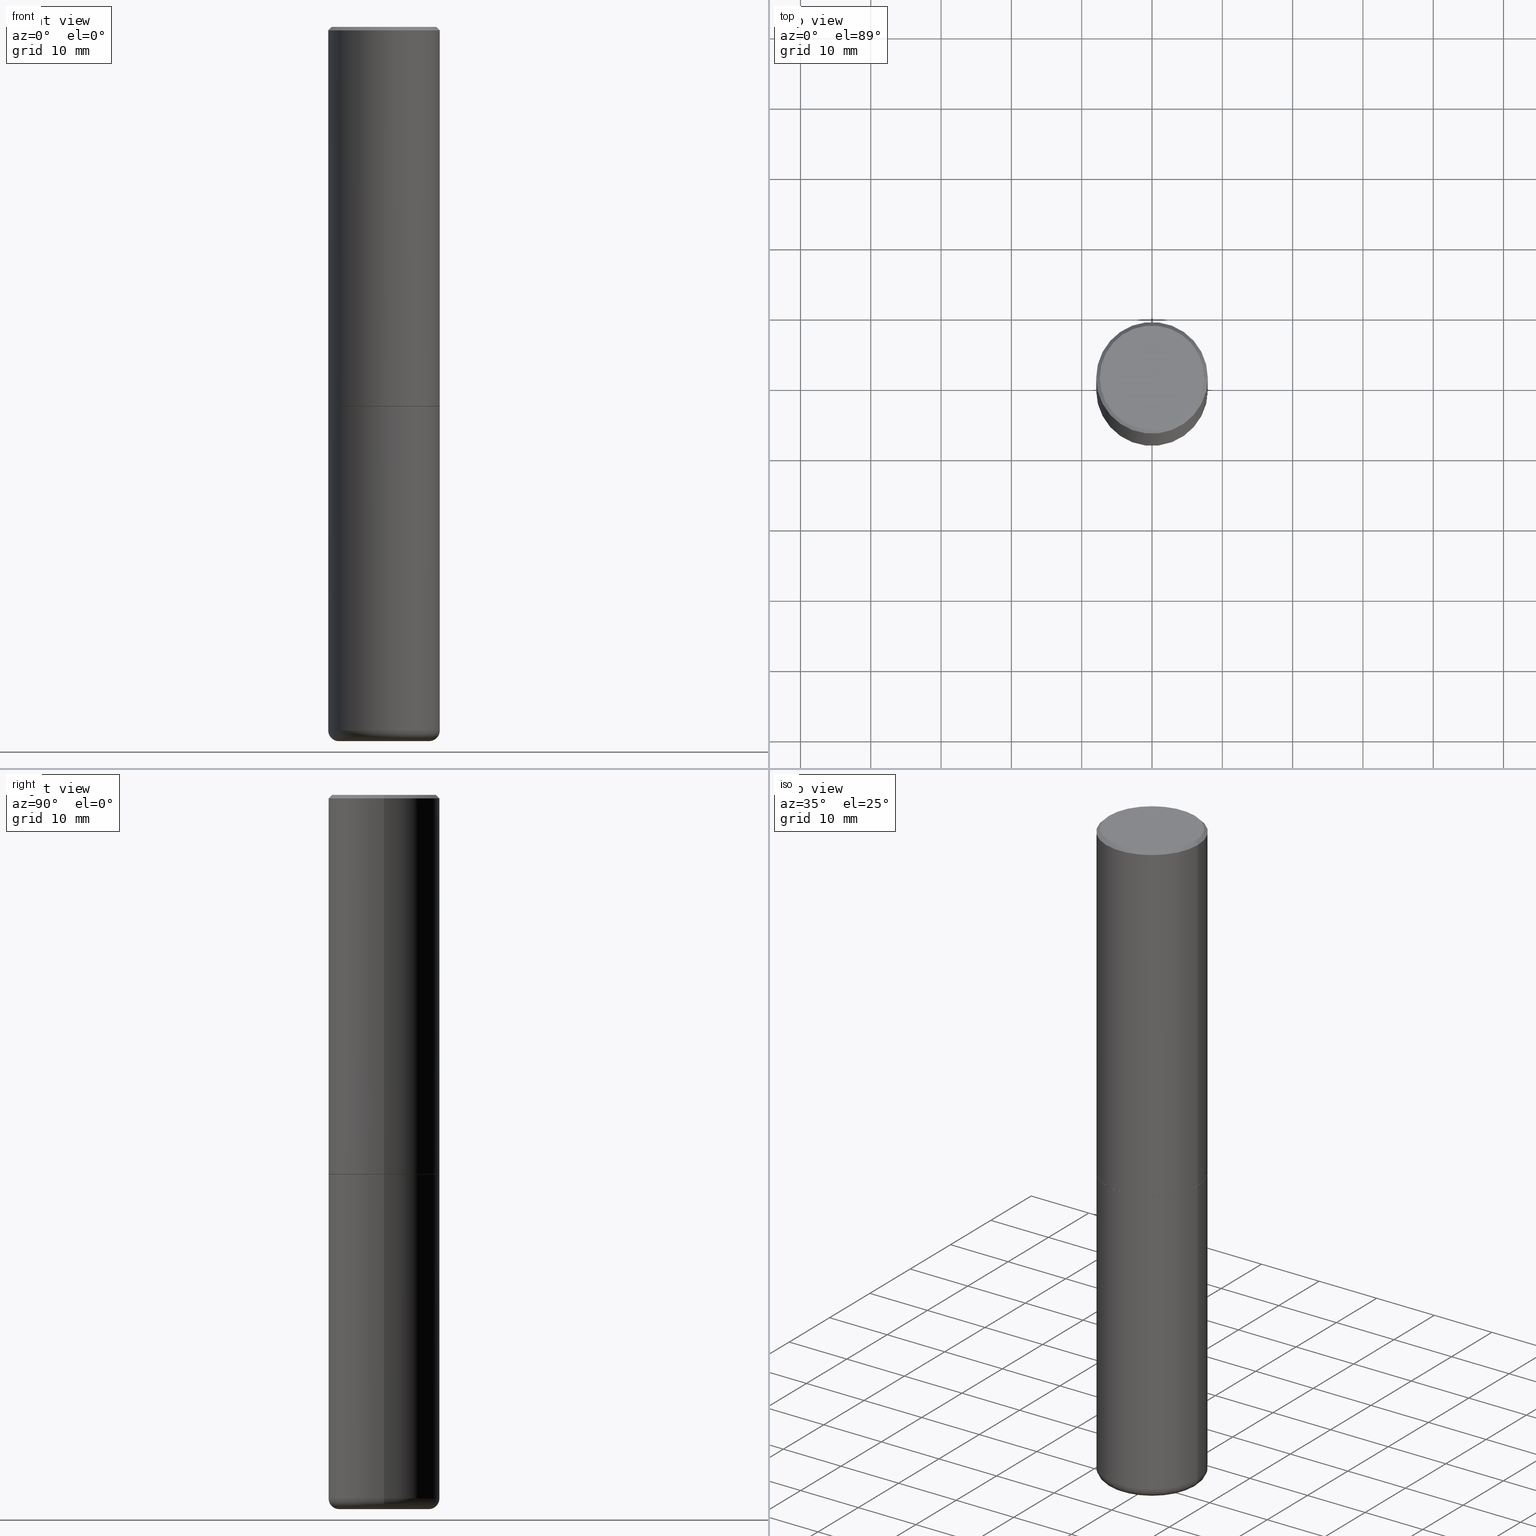
[diagram: canonical four-view strip — front | top / right | iso, engineering-drawing reading convention]
A machine part, canonical four-view strip (front | top / right | iso — engineering-drawing reading convention). The complete STEP part file that produces these views, byte-faithful:
ISO-10303-21;
HEADER;
FILE_DESCRIPTION (( 'STEP AP203' ),
    '1' );
FILE_NAME ('77397.STEP',
    '2024-05-02T19:36:14',
    ( '' ),
    ( '' ),
    'SwSTEP 2.0',
    'SolidWorks 2023',
    '' );
FILE_SCHEMA (( 'CONFIG_CONTROL_DESIGN' ));
ENDSEC;

DATA;
#1 = ORIENTED_EDGE ( 'NONE', *, *, #175, .T. ) ;
#2 = CC_DESIGN_PERSON_AND_ORGANIZATION_ASSIGNMENT ( #333, #269, ( #283 ) ) ;
#3 = ORIENTED_EDGE ( 'NONE', *, *, #313, .T. ) ;
#4 = DIRECTION ( 'NONE',  ( 2.438088387897960049E-29, -3.491481338843145188E-15, -1.000000000000000000 ) ) ;
#5 = CIRCLE ( 'NONE', #353, 0.06000000000000021289 ) ;
#6 = EDGE_LOOP ( 'NONE', ( #138, #102 ) ) ;
#7 = DATE_AND_TIME ( #200, #49 ) ;
#8 = ADVANCED_FACE ( 'NONE', ( #320 ), #314, .T. ) ;
#9 = DIRECTION ( 'NONE',  ( -2.445468806185136597E-29, 3.491481338843145583E-15, 1.000000000000000000 ) ) ;
#10 = PERSON_AND_ORGANIZATION ( #145, #12 ) ;
#11 = AXIS2_PLACEMENT_3D ( 'NONE', #30, #174, #19 ) ;
#12 = ORGANIZATION ( 'UNSPECIFIED', 'UNSPECIFIED', '' ) ;
#13 = FACE_OUTER_BOUND ( 'NONE', #385, .T. ) ;
#14 = APPROVAL_DATE_TIME ( #308, #286 ) ;
#15 = LENGTH_MEASURE_WITH_UNIT ( LENGTH_MEASURE( 0.02539999999999999897 ), #273 );
#16 = CARTESIAN_POINT ( 'NONE',  ( 0.3125000000000000000, -2.213735251080466911E-15, -0.02000000000000006981 ) ) ;
#17 = ADVANCED_FACE ( 'NONE', ( #414 ), #410, .T. ) ;
#18 = DIRECTION ( 'NONE',  ( 1.000000000000000000, -6.982962677686269077E-15, 0.000000000000000000 ) ) ;
#19 = DIRECTION ( 'NONE',  ( 1.000000000000000000, -6.982962677686269077E-15, 0.000000000000000000 ) ) ;
#20 = AXIS2_PLACEMENT_3D ( 'NONE', #275, #171, #18 ) ;
#21 = CARTESIAN_POINT ( 'NONE',  ( 5.196621213143415268E-29, -7.419397845041683624E-15, -2.125000000000000000 ) ) ;
#22 = CARTESIAN_POINT ( 'NONE',  ( 9.635147096369438236E-29, -1.375643647504199401E-14, -3.939999999999999947 ) ) ;
#23 = CC_DESIGN_PERSON_AND_ORGANIZATION_ASSIGNMENT ( #166, #335, ( #150 ) ) ;
#24 = VERTEX_POINT ( 'NONE', #129 ) ;
#25 = VERTEX_POINT ( 'NONE', #97 ) ;
#26 = DIRECTION ( 'NONE',  ( 1.000000000000000000, -6.982962677686265922E-15, 0.000000000000000000 ) ) ;
#27 = AXIS2_PLACEMENT_3D ( 'NONE', #375, #202, #338 ) ;
#28 = DIRECTION ( 'NONE',  ( 2.438088387897960049E-29, -3.491481338843145188E-15, -1.000000000000000000 ) ) ;
#29 = EDGE_CURVE ( 'NONE', #107, #411, #250, .T. ) ;
#30 = CARTESIAN_POINT ( 'NONE',  ( 9.635147096369438236E-29, -1.375643647504199401E-14, -3.939999999999999947 ) ) ;
#31 = ORIENTED_EDGE ( 'NONE', *, *, #245, .F. ) ;
#32 = CIRCLE ( 'NONE', #267, 0.2525000000000000022 ) ;
#33 = ADVANCED_FACE ( 'NONE', ( #218 ), #323, .T. ) ;
#34 = PLANE ( 'NONE',  #187 ) ;
#35 = MECHANICAL_CONTEXT ( 'NONE', #153, 'mechanical' ) ;
#36 = ORIENTED_EDGE ( 'NONE', *, *, #68, .T. ) ;
#37 = CALENDAR_DATE ( 2024, 2, 5 ) ;
#38 = EDGE_CURVE ( 'NONE', #25, #394, #220, .T. ) ;
#39 = ORIENTED_EDGE ( 'NONE', *, *, #38, .T. ) ;
#40 = AXIS2_PLACEMENT_3D ( 'NONE', #201, #141, #348 ) ;
#41 = DATE_AND_TIME ( #370, #65 ) ;
#42 = ORIENTED_EDGE ( 'NONE', *, *, #257, .T. ) ;
#43 = PERSON_AND_ORGANIZATION ( #145, #12 ) ;
#44 = CYLINDRICAL_SURFACE ( 'NONE', #260, 0.3125000000000001665 ) ;
#45 = CARTESIAN_POINT ( 'NONE',  ( 4.906101647375534649E-45, -7.004612900788104277E-31, -2.006200870347193887E-16 ) ) ;
#46 = DIRECTION ( 'NONE',  ( -0.7071067811865466846, 2.468850131082247989E-15, -0.7071067811865483499 ) ) ;
#47 = LINE ( 'NONE', #124, #155 ) ;
#48 = AXIS2_PLACEMENT_3D ( 'NONE', #54, #304, #117 ) ;
#49 = LOCAL_TIME ( 15, 36, 14.00000000000000000, #298 ) ;
#50 = EDGE_CURVE ( 'NONE', #227, #382, #120, .T. ) ;
#51 = DIRECTION ( 'NONE',  ( 1.000000000000000000, -6.982962677686275388E-15, 0.000000000000000000 ) ) ;
#52 = ORIENTED_EDGE ( 'NONE', *, *, #116, .F. ) ;
#53 = DIRECTION ( 'NONE',  ( -0.7071067811866199593, 7.493145998870616062E-15, 0.7071067811864750752 ) ) ;
#54 = CARTESIAN_POINT ( 'NONE',  ( 5.196621213143415268E-29, -7.419397845041683624E-15, -2.125000000000000000 ) ) ;
#55 = VECTOR ( 'NONE', #325, 39.37007874015748143 ) ;
#56 = CARTESIAN_POINT ( 'NONE',  ( 0.2525000000000000022, -1.572912343148836720E-14, -4.000000000000000888 ) ) ;
#57 = ORIENTED_EDGE ( 'NONE', *, *, #355, .T. ) ;
#58 = LINE ( 'NONE', #79, #401 ) ;
#59 = CARTESIAN_POINT ( 'NONE',  ( -0.3114999999999999991, -5.200758768800747571E-15, -2.125000000000000000 ) ) ;
#60 = ORIENTED_EDGE ( 'NONE', *, *, #83, .T. ) ;
#61 = DIRECTION ( 'NONE',  ( 1.000000000000000000, -6.982962677686265922E-15, 4.876176775795935793E-29 ) ) ;
#62 = EDGE_LOOP ( 'NONE', ( #365, #82, #215, #249 ) ) ;
#63 = CLOSED_SHELL ( 'NONE', ( #213, #231, #272, #311, #8, #191 ) ) ;
#64 = ADVANCED_FACE ( 'NONE', ( #13 ), #221, .T. ) ;
#65 = LOCAL_TIME ( 15, 36, 14.00000000000000000, #193 ) ;
#66 = ORIENTED_EDGE ( 'NONE', *, *, #50, .T. ) ;
#67 = APPROVAL_ROLE ( '' ) ;
#68 = EDGE_CURVE ( 'NONE', #25, #297, #163, .T. ) ;
#69 = CIRCLE ( 'NONE', #376, 0.06000000000000021289 ) ;
#70 = DIRECTION ( 'NONE',  ( -1.000000000000000000, 6.982962677686266711E-15, 0.000000000000000000 ) ) ;
#71 = EDGE_LOOP ( 'NONE', ( #324, #363, #42, #88 ) ) ;
#72 = PERSON_AND_ORGANIZATION_ROLE ( 'design_owner' ) ;
#73 = PERSON_AND_ORGANIZATION ( #145, #12 ) ;
#74 =( CONVERSION_BASED_UNIT ( 'INCH', #15 ) LENGTH_UNIT ( ) NAMED_UNIT ( #407 ) );
#75 = DIRECTION ( 'NONE',  ( -2.445468806185136597E-29, 3.491481338843145583E-15, 1.000000000000000000 ) ) ;
#76 = DIRECTION ( 'NONE',  ( 1.000000000000000000, -6.982962677686266711E-15, 4.873475059489872853E-29 ) ) ;
#77 = CYLINDRICAL_SURFACE ( 'NONE', #80, 0.3125000000000000000 ) ;
#78 = DIRECTION ( 'NONE',  ( -2.445468806185136877E-29, 3.491481338843145188E-15, 1.000000000000000000 ) ) ;
#79 = CARTESIAN_POINT ( 'NONE',  ( -0.3114999999999999991, -5.206057223148971551E-15, -2.125000000000000000 ) ) ;
#80 = AXIS2_PLACEMENT_3D ( 'NONE', #374, #342, #244 ) ;
#81 = CARTESIAN_POINT ( 'NONE',  ( -0.2525000000000000022, -1.196231606724773985E-14, -3.939999999999999947 ) ) ;
#82 = ORIENTED_EDGE ( 'NONE', *, *, #377, .T. ) ;
#83 = EDGE_CURVE ( 'NONE', #107, #135, #388, .T. ) ;
#84 = CARTESIAN_POINT ( 'NONE',  ( 4.906101647375534649E-45, -7.004612900788104277E-31, -2.006200870347193887E-16 ) ) ;
#85 = CARTESIAN_POINT ( 'NONE',  ( -0.2925000000000002043, 2.077431396611664583E-15, -2.006200870347337854E-16 ) ) ;
#86 = ORIENTED_EDGE ( 'NONE', *, *, #142, .F. ) ;
#87 = DIRECTION ( 'NONE',  ( -2.445468806185136597E-29, 3.491481338843145583E-15, 1.000000000000000000 ) ) ;
#88 = ORIENTED_EDGE ( 'NONE', *, *, #387, .T. ) ;
#89 = ORIENTED_EDGE ( 'NONE', *, *, #175, .F. ) ;
#90 = DIRECTION ( 'NONE',  ( 1.000000000000000000, -6.982962677686264344E-15, 4.883557194083112340E-29 ) ) ;
#91 = DIRECTION ( 'NONE',  ( 1.000000000000000000, -6.982962677686266711E-15, 4.876176775795936353E-29 ) ) ;
#92 = ORIENTED_EDGE ( 'NONE', *, *, #276, .T. ) ;
#93 = ORIENTED_EDGE ( 'NONE', *, *, #109, .F. ) ;
#94 = DATE_AND_TIME ( #358, #173 ) ;
#95 = CARTESIAN_POINT ( 'NONE',  ( 0.3125000000000000000, -2.213735251080466911E-15, -0.02000000000000006981 ) ) ;
#96 = EDGE_LOOP ( 'NONE', ( #66, #157, #259, #331 ) ) ;
#97 = CARTESIAN_POINT ( 'NONE',  ( -0.3125000000000002776, -1.522421945989534932E-15, -2.123999999999999666 ) ) ;
#98 = AXIS2_PLACEMENT_3D ( 'NONE', #21, #146, #240 ) ;
#99 = ORIENTED_EDGE ( 'NONE', *, *, #116, .T. ) ;
#100 = APPROVAL ( #236, 'UNSPECIFIED' ) ;
#101 = CARTESIAN_POINT ( 'NONE',  ( 9.781875224740547508E-29, -1.396592535537258391E-14, -4.000000000000000888 ) ) ;
#102 = ORIENTED_EDGE ( 'NONE', *, *, #396, .F. ) ;
#103 = APPROVAL_PERSON_ORGANIZATION ( #43, #286, #366 ) ;
#104 = EDGE_LOOP ( 'NONE', ( #99, #3, #93, #86 ) ) ;
#105 = FACE_OUTER_BOUND ( 'NONE', #71, .T. ) ;
#106 = DIRECTION ( 'NONE',  ( 1.000000000000000000, -6.982962677686269077E-15, 0.000000000000000000 ) ) ;
#107 = VERTEX_POINT ( 'NONE', #140 ) ;
#108 = PERSON_AND_ORGANIZATION ( #145, #12 ) ;
#109 = EDGE_CURVE ( 'NONE', #297, #25, #254, .T. ) ;
#110 = APPROVAL_STATUS ( 'not_yet_approved' ) ;
#111 = CONICAL_SURFACE ( 'NONE', #367, 0.3125000000000000000, 0.7853981633974471688 ) ;
#112 = CC_DESIGN_APPROVAL ( #286, ( #283 ) ) ;
#113 = DIRECTION ( 'NONE',  ( 1.000000000000000000, -6.982962677686265922E-15, 0.000000000000000000 ) ) ;
#114 = PERSON_AND_ORGANIZATION_ROLE ( 'classification_officer' ) ;
#115 = CARTESIAN_POINT ( 'NONE',  ( 0.3114999999999999991, -9.594590719140955956E-15, -2.125000000000000000 ) ) ;
#116 = EDGE_CURVE ( 'NONE', #405, #263, #131, .T. ) ;
#117 = DIRECTION ( 'NONE',  ( 1.000000000000000000, -6.982962677686265922E-15, 0.000000000000000000 ) ) ;
#118 = CARTESIAN_POINT ( 'NONE',  ( 5.196621213143415268E-29, -7.419397845041683624E-15, -2.125000000000000000 ) ) ;
#119 = CARTESIAN_POINT ( 'NONE',  ( 3.737869654564021101E-29, -2.262128533529896139E-14, -4.000000000000000000 ) ) ;
#120 = CIRCLE ( 'NONE', #11, 0.3125000000000000000 ) ;
#121 = CC_DESIGN_PERSON_AND_ORGANIZATION_ASSIGNMENT ( #397, #167, ( #283 ) ) ;
#122 = CARTESIAN_POINT ( 'NONE',  ( 0.2525000000000000022, -1.551963455115777730E-14, -3.939999999999999947 ) ) ;
#123 = CALENDAR_DATE ( 2024, 2, 5 ) ;
#124 = CARTESIAN_POINT ( 'NONE',  ( 0.3125000000000001665, -2.182175836776959530E-15, 1.523805242436230636E-29 ) ) ;
#125 = CARTESIAN_POINT ( 'NONE',  ( 0.000000000000000000, 0.000000000000000000, 0.000000000000000000 ) ) ;
#126 = ORIENTED_EDGE ( 'NONE', *, *, #257, .F. ) ;
#127 = AXIS2_PLACEMENT_3D ( 'NONE', #274, #400, #113 ) ;
#128 = EDGE_CURVE ( 'NONE', #284, #227, #69, .T. ) ;
#129 = CARTESIAN_POINT ( 'NONE',  ( 0.3125000000000000000, -9.601573681818641971E-15, -2.125000000000000000 ) ) ;
#130 = SHAPE_DEFINITION_REPRESENTATION ( #315, #176 ) ;
#131 = CIRCLE ( 'NONE', #127, 0.3114999999999999991 ) ;
#132 = CARTESIAN_POINT ( 'NONE',  ( 9.635147096369438236E-29, -1.375643647504199401E-14, -3.939999999999999947 ) ) ;
#133 = DIRECTION ( 'NONE',  ( -1.000000000000000000, 6.982962677686265922E-15, -4.876176775795935793E-29 ) ) ;
#134 = DIRECTION ( 'NONE',  ( -2.445468806185136597E-29, 3.491481338843145583E-15, 1.000000000000000000 ) ) ;
#135 = VERTEX_POINT ( 'NONE', #85 ) ;
#136 = AXIS2_PLACEMENT_3D ( 'NONE', #132, #134, #106 ) ;
#137 = ORIENTED_EDGE ( 'NONE', *, *, #128, .T. ) ;
#138 = ORIENTED_EDGE ( 'NONE', *, *, #161, .F. ) ;
#139 = CARTESIAN_POINT ( 'NONE',  ( -0.3125000000000000000, 2.112346210000095443E-15, -0.02000000000000006981 ) ) ;
#140 = CARTESIAN_POINT ( 'NONE',  ( 0.2925000000000002043, -2.110215457714321114E-15, -2.006200870347048687E-16 ) ) ;
#141 = DIRECTION ( 'NONE',  ( -2.445468806185136597E-29, 3.491481338843145583E-15, 1.000000000000000000 ) ) ;
#142 = EDGE_CURVE ( 'NONE', #405, #297, #237, .T. ) ;
#143 = DIRECTION ( 'NONE',  ( 2.438088387897960049E-29, -3.491481338843145188E-15, -1.000000000000000000 ) ) ;
#144 = PLANE ( 'NONE',  #241 ) ;
#145 = PERSON ( 'UNSPECIFIED', 'UNSPECIFIED', 'UNSPECIFIED', ('UNSPECIFIED'), ('UNSPECIFIED'), ('UNSPECIFIED') ) ;
#146 = DIRECTION ( 'NONE',  ( -2.445468806185136597E-29, 3.491481338843145583E-15, 1.000000000000000000 ) ) ;
#147 = CLOSED_SHELL ( 'NONE', ( #17, #253, #369, #198, #33, #64, #223, #384 ) ) ;
#148 = CONICAL_SURFACE ( 'NONE', #290, 0.3125000000000000000, 0.7853981633974471688 ) ;
#149 = DIRECTION ( 'NONE',  ( -2.445468806185136597E-29, 3.491481338843145583E-15, 1.000000000000000000 ) ) ;
#150 = PRODUCT_DEFINITION ( 'UNKNOWN', '', #283, #368 ) ;
#151 = DIRECTION ( 'NONE',  ( 1.000000000000000000, -6.982962677686264344E-15, 4.883557194083112340E-29 ) ) ;
#152 = APPROVAL_ROLE ( '' ) ;
#153 = APPLICATION_CONTEXT ( 'configuration controlled 3d designs of mechanical parts and assemblies' ) ;
#154 = PRODUCT ( '77397', '77397', '', ( #35 ) ) ;
#155 = VECTOR ( 'NONE', #279, 39.37007874015748143 ) ;
#156 = CARTESIAN_POINT ( 'NONE',  ( 0.000000000000000000, 0.000000000000000000, 0.000000000000000000 ) ) ;
#157 = ORIENTED_EDGE ( 'NONE', *, *, #182, .T. ) ;
#158 = UNCERTAINTY_MEASURE_WITH_UNIT (LENGTH_MEASURE( 1.000000000000000082E-05 ), #74, 'distance_accuracy_value', 'NONE');
#159 = CIRCLE ( 'NONE', #27, 0.2525000000000000022 ) ;
#160 = EDGE_LOOP ( 'NONE', ( #278, #39, #31, #349 ) ) ;
#161 = EDGE_CURVE ( 'NONE', #284, #261, #159, .T. ) ;
#162 =( NAMED_UNIT ( * ) SI_UNIT ( $, .STERADIAN. ) SOLID_ANGLE_UNIT ( ) );
#163 = CIRCLE ( 'NONE', #332, 0.3125000000000002776 ) ;
#164 = CIRCLE ( 'NONE', #98, 0.3125000000000000000 ) ;
#165 = CARTESIAN_POINT ( 'NONE',  ( -0.3125000000000001665, -1.153599042579167936E-14, -3.939999999999999947 ) ) ;
#166 = PERSON_AND_ORGANIZATION ( #145, #12 ) ;
#167 = PERSON_AND_ORGANIZATION_ROLE ( 'design_supplier' ) ;
#168 = DATE_TIME_ROLE ( 'creation_date' ) ;
#169 = CC_DESIGN_PERSON_AND_ORGANIZATION_ASSIGNMENT ( #108, #72, ( #154 ) ) ;
#170 = CARTESIAN_POINT ( 'NONE',  ( -0.3125000000000000000, 2.112346210000095443E-15, -0.02000000000000006981 ) ) ;
#171 = DIRECTION ( 'NONE',  ( -2.445468806185136597E-29, 3.491481338843145583E-15, 1.000000000000000000 ) ) ;
#172 = PLANE ( 'NONE',  #418 ) ;
#173 = LOCAL_TIME ( 15, 36, 14.00000000000000000, #287 ) ;
#174 = DIRECTION ( 'NONE',  ( -2.445468806185136597E-29, 3.491481338843145583E-15, 1.000000000000000000 ) ) ;
#175 = EDGE_CURVE ( 'NONE', #261, #382, #5, .T. ) ;
#176 = ADVANCED_BREP_SHAPE_REPRESENTATION ( '77397', ( #224, #372, #383 ), #328 ) ;
#177 = VECTOR ( 'NONE', #354, 39.37007874015748143 ) ;
#178 = VECTOR ( 'NONE', #46, 39.37007874015748143 ) ;
#179 = CC_DESIGN_SECURITY_CLASSIFICATION ( #242, ( #283 ) ) ;
#180 = DIRECTION ( 'NONE',  ( -2.445468806185136597E-29, 3.491481338843145583E-15, 1.000000000000000000 ) ) ;
#181 = FACE_OUTER_BOUND ( 'NONE', #232, .T. ) ;
#182 = EDGE_CURVE ( 'NONE', #382, #352, #398, .T. ) ;
#183 = CARTESIAN_POINT ( 'NONE',  ( 5.196621213143415268E-29, -7.419397845041683624E-15, -2.125000000000000000 ) ) ;
#184 = CARTESIAN_POINT ( 'NONE',  ( 9.635147096369438236E-29, -1.375643647504199401E-14, -3.939999999999999947 ) ) ;
#185 = ORIENTED_EDGE ( 'NONE', *, *, #377, .F. ) ;
#186 = PERSON_AND_ORGANIZATION ( #145, #12 ) ;
#187 = AXIS2_PLACEMENT_3D ( 'NONE', #197, #4, #301 ) ;
#188 = ORIENTED_EDGE ( 'NONE', *, *, #362, .T. ) ;
#189 = CARTESIAN_POINT ( 'NONE',  ( -0.3125000000000001665, 2.220446049250314264E-15, -1.537167215704658792E-29 ) ) ;
#190 = CIRCLE ( 'NONE', #347, 0.3125000000000000000 ) ;
#191 = ADVANCED_FACE ( 'NONE', ( #206 ), #144, .T. ) ;
#192 = LINE ( 'NONE', #403, #316 ) ;
#193 = COORDINATED_UNIVERSAL_TIME_OFFSET ( 5, 0, .BEHIND. ) ;
#194 = AXIS2_PLACEMENT_3D ( 'NONE', #45, #149, #76 ) ;
#195 = AXIS2_PLACEMENT_3D ( 'NONE', #184, #87, #151 ) ;
#196 = AXIS2_PLACEMENT_3D ( 'NONE', #406, #205, #26 ) ;
#197 = CARTESIAN_POINT ( 'NONE',  ( 2.042516583223234117E-15, 0.2925000000000002043, -1.121568335128980438E-15 ) ) ;
#198 = ADVANCED_FACE ( 'NONE', ( #105 ), #111, .T. ) ;
#199 = EDGE_LOOP ( 'NONE', ( #52, #417 ) ) ;
#200 = CALENDAR_DATE ( 2024, 2, 5 ) ;
#201 = CARTESIAN_POINT ( 'NONE',  ( 4.890937612370289799E-31, -6.982962677686315028E-17, -0.02000000000000006981 ) ) ;
#202 = DIRECTION ( 'NONE',  ( -2.445468806185136597E-29, 3.491481338843145583E-15, 1.000000000000000000 ) ) ;
#203 = CARTESIAN_POINT ( 'NONE',  ( 5.196621213143415268E-29, -7.419397845041683624E-15, -2.125000000000000000 ) ) ;
#204 = DIRECTION ( 'NONE',  ( 2.445468806185136597E-29, -3.491481338843145583E-15, -1.000000000000000000 ) ) ;
#205 = DIRECTION ( 'NONE',  ( -2.445468806185136597E-29, 3.491481338843145583E-15, 1.000000000000000000 ) ) ;
#206 = FACE_OUTER_BOUND ( 'NONE', #6, .T. ) ;
#207 = CIRCLE ( 'NONE', #235, 0.2925000000000002043 ) ;
#208 = APPROVAL ( #288, 'UNSPECIFIED' ) ;
#209 = CARTESIAN_POINT ( 'NONE',  ( -0.3125000000000000000, -8.367471110791524949E-15, -2.125000000000000000 ) ) ;
#210 = CARTESIAN_POINT ( 'NONE',  ( 0.3114999999999999991, -9.594590719140955956E-15, -2.125000000000000000 ) ) ;
#211 = FACE_OUTER_BOUND ( 'NONE', #251, .T. ) ;
#212 = EDGE_LOOP ( 'NONE', ( #229, #36, #57, #391 ) ) ;
#213 = ADVANCED_FACE ( 'NONE', ( #265 ), #319, .T. ) ;
#214 = DIRECTION ( 'NONE',  ( -2.438088387897960049E-29, 3.491481338843145188E-15, 1.000000000000000000 ) ) ;
#215 = ORIENTED_EDGE ( 'NONE', *, *, #299, .T. ) ;
#216 = ORIENTED_EDGE ( 'NONE', *, *, #29, .T. ) ;
#217 = FACE_OUTER_BOUND ( 'NONE', #413, .T. ) ;
#218 = FACE_OUTER_BOUND ( 'NONE', #212, .T. ) ;
#219 = DATE_AND_TIME ( #123, #402 ) ;
#220 = LINE ( 'NONE', #189, #55 ) ;
#221 = CONICAL_SURFACE ( 'NONE', #48, 0.3114999999999999991, 0.7853981633975507526 ) ;
#222 = CIRCLE ( 'NONE', #40, 0.3125000000000000000 ) ;
#223 = ADVANCED_FACE ( 'NONE', ( #350 ), #395, .F. ) ;
#224 = MANIFOLD_SOLID_BREP ( 'Body-Move/Copy2[1]', #63 ) ;
#225 = DIRECTION ( 'NONE',  ( -2.445468806185136597E-29, 3.491481338843145583E-15, 1.000000000000000000 ) ) ;
#226 = ORIENTED_EDGE ( 'NONE', *, *, #161, .T. ) ;
#227 = VERTEX_POINT ( 'NONE', #381 ) ;
#228 = CC_DESIGN_APPROVAL ( #100, ( #150 ) ) ;
#229 = ORIENTED_EDGE ( 'NONE', *, *, #38, .F. ) ;
#230 = DIRECTION ( 'NONE',  ( 1.000000000000000000, -6.982962677686266711E-15, 0.000000000000000000 ) ) ;
#231 = ADVANCED_FACE ( 'NONE', ( #211 ), #412, .T. ) ;
#232 = EDGE_LOOP ( 'NONE', ( #92, #262 ) ) ;
#233 = APPROVAL_DATE_TIME ( #41, #100 ) ;
#234 = AXIS2_PLACEMENT_3D ( 'NONE', #156, #416, #386 ) ;
#235 = AXIS2_PLACEMENT_3D ( 'NONE', #84, #180, #404 ) ;
#236 = APPROVAL_STATUS ( 'not_yet_approved' ) ;
#237 = LINE ( 'NONE', #210, #392 ) ;
#238 = DIRECTION ( 'NONE',  ( -2.445468806185136597E-29, 3.491481338843145583E-15, 1.000000000000000000 ) ) ;
#239 = COORDINATED_UNIVERSAL_TIME_OFFSET ( 5, 0, .BEHIND. ) ;
#240 = DIRECTION ( 'NONE',  ( 1.000000000000000000, -6.982962677686269077E-15, 0.000000000000000000 ) ) ;
#241 = AXIS2_PLACEMENT_3D ( 'NONE', #119, #28, #133 ) ;
#242 = SECURITY_CLASSIFICATION ( '', '', #300 ) ;
#243 = DIRECTION ( 'NONE',  ( 1.000000000000000000, -6.982962677686269077E-15, 0.000000000000000000 ) ) ;
#244 = DIRECTION ( 'NONE',  ( 1.000000000000000000, -6.982962677686266711E-15, 4.876176775795936353E-29 ) ) ;
#245 = EDGE_CURVE ( 'NONE', #411, #394, #222, .T. ) ;
#246 = DIRECTION ( 'NONE',  ( -2.445468806185136877E-29, 3.491481338843145188E-15, 1.000000000000000000 ) ) ;
#247 = ORIENTED_EDGE ( 'NONE', *, *, #313, .F. ) ;
#248 = APPROVAL_PERSON_ORGANIZATION ( #10, #100, #67 ) ;
#249 = ORIENTED_EDGE ( 'NONE', *, *, #326, .F. ) ;
#250 = LINE ( 'NONE', #95, #177 ) ;
#251 = EDGE_LOOP ( 'NONE', ( #226, #1, #346, #318 ) ) ;
#252 = CARTESIAN_POINT ( 'NONE',  ( 4.890937612370289799E-31, -6.982962677686315028E-17, -0.02000000000000006981 ) ) ;
#253 = ADVANCED_FACE ( 'NONE', ( #336 ), #44, .T. ) ;
#254 = CIRCLE ( 'NONE', #20, 0.3125000000000002776 ) ;
#255 = AXIS2_PLACEMENT_3D ( 'NONE', #203, #214, #61 ) ;
#256 = CC_DESIGN_APPROVAL ( #208, ( #242 ) ) ;
#257 = EDGE_CURVE ( 'NONE', #135, #394, #409, .T. ) ;
#258 = CARTESIAN_POINT ( 'NONE',  ( 4.890937612370289799E-31, -6.982962677686315028E-17, -0.02000000000000006981 ) ) ;
#259 = ORIENTED_EDGE ( 'NONE', *, *, #276, .F. ) ;
#260 = AXIS2_PLACEMENT_3D ( 'NONE', #280, #340, #379 ) ;
#261 = VERTEX_POINT ( 'NONE', #305 ) ;
#262 = ORIENTED_EDGE ( 'NONE', *, *, #326, .T. ) ;
#263 = VERTEX_POINT ( 'NONE', #59 ) ;
#264 = APPLICATION_PROTOCOL_DEFINITION ( 'international standard', 'config_control_design', 1994, #153 ) ;
#265 = FACE_OUTER_BOUND ( 'NONE', #96, .T. ) ;
#266 = DIRECTION ( 'NONE',  ( 1.000000000000000000, 0.000000000000000000, 0.000000000000000000 ) ) ;
#267 = AXIS2_PLACEMENT_3D ( 'NONE', #101, #343, #271 ) ;
#268 = DIRECTION ( 'NONE',  ( -2.445468806185136597E-29, 3.491481338843145583E-15, 1.000000000000000000 ) ) ;
#269 = PERSON_AND_ORGANIZATION_ROLE ( 'creator' ) ;
#270 = DIRECTION ( 'NONE',  ( -1.000000000000000000, 6.982962677686265922E-15, -4.876176775795935793E-29 ) ) ;
#271 = DIRECTION ( 'NONE',  ( 1.000000000000000000, -6.982962677686269866E-15, 0.000000000000000000 ) ) ;
#272 = ADVANCED_FACE ( 'NONE', ( #181 ), #172, .F. ) ;
#273 =( LENGTH_UNIT ( ) NAMED_UNIT ( * ) SI_UNIT ( $, .METRE. ) );
#274 = CARTESIAN_POINT ( 'NONE',  ( 5.196621213143415268E-29, -7.419397845041683624E-15, -2.125000000000000000 ) ) ;
#275 = CARTESIAN_POINT ( 'NONE',  ( 5.194175744337229665E-29, -7.415906363702840616E-15, -2.123999999999999666 ) ) ;
#276 = EDGE_CURVE ( 'NONE', #24, #352, #295, .T. ) ;
#277 = DIRECTION ( 'NONE',  ( -1.000000000000000000, 6.982962677686266711E-15, 0.000000000000000000 ) ) ;
#278 = ORIENTED_EDGE ( 'NONE', *, *, #109, .T. ) ;
#279 = DIRECTION ( 'NONE',  ( -2.445468806185136877E-29, 3.491481338843145188E-15, 1.000000000000000000 ) ) ;
#280 = CARTESIAN_POINT ( 'NONE',  ( 0.000000000000000000, 0.000000000000000000, 0.000000000000000000 ) ) ;
#281 = EDGE_LOOP ( 'NONE', ( #294, #60 ) ) ;
#282 = AXIS2_PLACEMENT_3D ( 'NONE', #183, #225, #356 ) ;
#283 = PRODUCT_DEFINITION_FORMATION_WITH_SPECIFIED_SOURCE ( 'ANY', '', #154, .NOT_KNOWN. ) ;
#284 = VERTEX_POINT ( 'NONE', #56 ) ;
#285 = APPROVAL_DATE_TIME ( #94, #208 ) ;
#286 = APPROVAL ( #110, 'UNSPECIFIED' ) ;
#287 = COORDINATED_UNIVERSAL_TIME_OFFSET ( 5, 0, .BEHIND. ) ;
#288 = APPROVAL_STATUS ( 'not_yet_approved' ) ;
#289 = AXIS2_PLACEMENT_3D ( 'NONE', #22, #408, #90 ) ;
#290 = AXIS2_PLACEMENT_3D ( 'NONE', #252, #415, #70 ) ;
#291 = DATE_TIME_ROLE ( 'classification_date' ) ;
#292 = CC_DESIGN_DATE_AND_TIME_ASSIGNMENT ( #7, #168, ( #150 ) ) ;
#293 = ORIENTED_EDGE ( 'NONE', *, *, #245, .T. ) ;
#294 = ORIENTED_EDGE ( 'NONE', *, *, #330, .T. ) ;
#295 = CIRCLE ( 'NONE', #361, 0.3125000000000000000 ) ;
#296 = FACE_OUTER_BOUND ( 'NONE', #281, .T. ) ;
#297 = VERTEX_POINT ( 'NONE', #359 ) ;
#298 = COORDINATED_UNIVERSAL_TIME_OFFSET ( 5, 0, .BEHIND. ) ;
#299 = EDGE_CURVE ( 'NONE', #227, #24, #192, .T. ) ;
#300 = SECURITY_CLASSIFICATION_LEVEL ( 'unclassified' ) ;
#301 = DIRECTION ( 'NONE',  ( -1.000000000000000000, 6.982962677686265922E-15, -4.876176775795935793E-29 ) ) ;
#302 = COORDINATED_UNIVERSAL_TIME_OFFSET ( 5, 0, .BEHIND. ) ;
#303 = APPLICATION_PROTOCOL_DEFINITION ( 'international standard', 'config_control_design', 1994, #339 ) ;
#304 = DIRECTION ( 'NONE',  ( -2.445468806185136597E-29, 3.491481338843145583E-15, 1.000000000000000000 ) ) ;
#305 = CARTESIAN_POINT ( 'NONE',  ( -0.2525000000000000022, -1.185389768668500455E-14, -4.000000000000000888 ) ) ;
#306 = EDGE_LOOP ( 'NONE', ( #89, #357, #137, #185 ) ) ;
#307 = DIRECTION ( 'NONE',  ( 7.105427357601001859E-15, 1.000000000000000000, -3.491481338843145583E-15 ) ) ;
#308 = DATE_AND_TIME ( #37, #341 ) ;
#309 = VECTOR ( 'NONE', #78, 39.37007874015748143 ) ;
#310 = CARTESIAN_POINT ( 'NONE',  ( 5.196621213143415268E-29, -7.419397845041683624E-15, -2.125000000000000000 ) ) ;
#311 = ADVANCED_FACE ( 'NONE', ( #380 ), #77, .T. ) ;
#312 = DIRECTION ( 'NONE',  ( -1.000000000000000000, 7.105427357600997914E-15, 0.000000000000000000 ) ) ;
#313 = EDGE_CURVE ( 'NONE', #263, #25, #58, .T. ) ;
#314 = TOROIDAL_SURFACE ( 'NONE', #289, 0.2525000000000000022, 0.06000000000000023370 ) ;
#315 = PRODUCT_DEFINITION_SHAPE ( 'NONE', 'NONE',  #150 ) ;
#316 = VECTOR ( 'NONE', #246, 39.37007874015748143 ) ;
#317 = APPROVAL_PERSON_ORGANIZATION ( #186, #208, #152 ) ;
#318 = ORIENTED_EDGE ( 'NONE', *, *, #128, .F. ) ;
#319 = CYLINDRICAL_SURFACE ( 'NONE', #322, 0.3125000000000000000 ) ;
#320 = FACE_OUTER_BOUND ( 'NONE', #306, .T. ) ;
#321 = CC_DESIGN_DATE_AND_TIME_ASSIGNMENT ( #219, #291, ( #242 ) ) ;
#322 = AXIS2_PLACEMENT_3D ( 'NONE', #125, #75, #91 ) ;
#323 = CYLINDRICAL_SURFACE ( 'NONE', #234, 0.3125000000000001665 ) ;
#324 = ORIENTED_EDGE ( 'NONE', *, *, #29, .F. ) ;
#325 = DIRECTION ( 'NONE',  ( -2.445468806185136877E-29, 3.491481338843145188E-15, 1.000000000000000000 ) ) ;
#326 = EDGE_CURVE ( 'NONE', #352, #24, #164, .T. ) ;
#327 = ORIENTED_EDGE ( 'NONE', *, *, #142, .T. ) ;
#328 =( GEOMETRIC_REPRESENTATION_CONTEXT ( 3 ) GLOBAL_UNCERTAINTY_ASSIGNED_CONTEXT ( ( #158 ) ) GLOBAL_UNIT_ASSIGNED_CONTEXT ( ( #74, #399, #162 ) ) REPRESENTATION_CONTEXT ( 'NONE', 'WORKASPACE' ) );
#329 = DIRECTION ( 'NONE',  ( 0.000000000000000000, 0.000000000000000000, 1.000000000000000000 ) ) ;
#330 = EDGE_CURVE ( 'NONE', #135, #107, #207, .T. ) ;
#331 = ORIENTED_EDGE ( 'NONE', *, *, #299, .F. ) ;
#332 = AXIS2_PLACEMENT_3D ( 'NONE', #344, #268, #243 ) ;
#333 = PERSON_AND_ORGANIZATION ( #145, #12 ) ;
#334 = CIRCLE ( 'NONE', #196, 0.3114999999999999991 ) ;
#335 = PERSON_AND_ORGANIZATION_ROLE ( 'creator' ) ;
#336 = FACE_OUTER_BOUND ( 'NONE', #160, .T. ) ;
#337 = CARTESIAN_POINT ( 'NONE',  ( 4.890937612370289799E-31, -6.982962677686315028E-17, -0.02000000000000006981 ) ) ;
#338 = DIRECTION ( 'NONE',  ( 1.000000000000000000, -6.982962677686269866E-15, 0.000000000000000000 ) ) ;
#339 = APPLICATION_CONTEXT ( 'configuration controlled 3d designs of mechanical parts and assemblies' ) ;
#340 = DIRECTION ( 'NONE',  ( -2.445468806185136597E-29, 3.491481338843145583E-15, 1.000000000000000000 ) ) ;
#341 = LOCAL_TIME ( 15, 36, 14.00000000000000000, #302 ) ;
#342 = DIRECTION ( 'NONE',  ( -2.445468806185136597E-29, 3.491481338843145583E-15, 1.000000000000000000 ) ) ;
#343 = DIRECTION ( 'NONE',  ( -2.445468806185136597E-29, 3.491481338843145583E-15, 1.000000000000000000 ) ) ;
#344 = CARTESIAN_POINT ( 'NONE',  ( 5.194175744337229665E-29, -7.415906363702840616E-15, -2.123999999999999666 ) ) ;
#345 = DIRECTION ( 'NONE',  ( 1.000000000000000000, -6.982962677686269077E-15, 0.000000000000000000 ) ) ;
#346 = ORIENTED_EDGE ( 'NONE', *, *, #50, .F. ) ;
#347 = AXIS2_PLACEMENT_3D ( 'NONE', #258, #9, #230 ) ;
#348 = DIRECTION ( 'NONE',  ( 1.000000000000000000, -6.982962677686266711E-15, 0.000000000000000000 ) ) ;
#349 = ORIENTED_EDGE ( 'NONE', *, *, #355, .F. ) ;
#350 = FACE_OUTER_BOUND ( 'NONE', #199, .T. ) ;
#351 = PRODUCT_RELATED_PRODUCT_CATEGORY ( 'detail', '', ( #154 ) ) ;
#352 = VERTEX_POINT ( 'NONE', #209 ) ;
#353 = AXIS2_PLACEMENT_3D ( 'NONE', #81, #307, #312 ) ;
#354 = DIRECTION ( 'NONE',  ( 0.7071067811865466846, -7.319954787623252890E-15, -0.7071067811865483499 ) ) ;
#355 = EDGE_CURVE ( 'NONE', #297, #411, #47, .T. ) ;
#356 = DIRECTION ( 'NONE',  ( 1.000000000000000000, -6.982962677686265922E-15, 0.000000000000000000 ) ) ;
#357 = ORIENTED_EDGE ( 'NONE', *, *, #396, .T. ) ;
#358 = CALENDAR_DATE ( 2024, 2, 5 ) ;
#359 = CARTESIAN_POINT ( 'NONE',  ( 0.3125000000000002776, -9.598082200479802119E-15, -2.123999999999999666 ) ) ;
#360 = ORIENTED_EDGE ( 'NONE', *, *, #83, .F. ) ;
#361 = AXIS2_PLACEMENT_3D ( 'NONE', #118, #238, #345 ) ;
#362 = EDGE_CURVE ( 'NONE', #263, #405, #334, .T. ) ;
#363 = ORIENTED_EDGE ( 'NONE', *, *, #330, .F. ) ;
#364 = CARTESIAN_POINT ( 'NONE',  ( 0.000000000000000000, 0.000000000000000000, 0.000000000000000000 ) ) ;
#365 = ORIENTED_EDGE ( 'NONE', *, *, #182, .F. ) ;
#366 = APPROVAL_ROLE ( '' ) ;
#367 = AXIS2_PLACEMENT_3D ( 'NONE', #337, #204, #277 ) ;
#368 = DESIGN_CONTEXT ( 'detailed design', #339, 'design' ) ;
#369 = ADVANCED_FACE ( 'NONE', ( #217 ), #148, .T. ) ;
#370 = CALENDAR_DATE ( 2024, 2, 5 ) ;
#371 = DIRECTION ( 'NONE',  ( 0.7071067811866199593, -2.468850131083015945E-15, 0.7071067811864750752 ) ) ;
#372 = MANIFOLD_SOLID_BREP ( 'Body-Move/Copy2[2]', #147 ) ;
#373 = CARTESIAN_POINT ( 'NONE',  ( -0.3125000000000000000, 2.220446049250313081E-15, -1.537167215704658232E-29 ) ) ;
#374 = CARTESIAN_POINT ( 'NONE',  ( 0.000000000000000000, 0.000000000000000000, 0.000000000000000000 ) ) ;
#375 = CARTESIAN_POINT ( 'NONE',  ( 9.781875224740547508E-29, -1.396592535537258391E-14, -4.000000000000000888 ) ) ;
#376 = AXIS2_PLACEMENT_3D ( 'NONE', #122, #378, #51 ) ;
#377 = EDGE_CURVE ( 'NONE', #382, #227, #389, .T. ) ;
#378 = DIRECTION ( 'NONE',  ( -6.982962677686266711E-15, -1.000000000000000000, 3.491481338843145583E-15 ) ) ;
#379 = DIRECTION ( 'NONE',  ( 1.000000000000000000, -6.982962677686266711E-15, 4.876176775795935232E-29 ) ) ;
#380 = FACE_OUTER_BOUND ( 'NONE', #62, .T. ) ;
#381 = CARTESIAN_POINT ( 'NONE',  ( 0.3125000000000001665, -1.593861231181895394E-14, -3.939999999999999947 ) ) ;
#382 = VERTEX_POINT ( 'NONE', #165 ) ;
#383 = AXIS2_PLACEMENT_3D ( 'NONE', #364, #329, #266 ) ;
#384 = ADVANCED_FACE ( 'NONE', ( #296 ), #34, .F. ) ;
#385 = EDGE_LOOP ( 'NONE', ( #247, #188, #327, #390 ) ) ;
#386 = DIRECTION ( 'NONE',  ( 1.000000000000000000, -6.982962677686266711E-15, 4.876176775795935232E-29 ) ) ;
#387 = EDGE_CURVE ( 'NONE', #394, #411, #190, .T. ) ;
#388 = CIRCLE ( 'NONE', #194, 0.2925000000000002043 ) ;
#389 = CIRCLE ( 'NONE', #136, 0.3125000000000000000 ) ;
#390 = ORIENTED_EDGE ( 'NONE', *, *, #68, .F. ) ;
#391 = ORIENTED_EDGE ( 'NONE', *, *, #387, .F. ) ;
#392 = VECTOR ( 'NONE', #371, 39.37007874015748143 ) ;
#393 = CC_DESIGN_PERSON_AND_ORGANIZATION_ASSIGNMENT ( #73, #114, ( #242 ) ) ;
#394 = VERTEX_POINT ( 'NONE', #139 ) ;
#395 = PLANE ( 'NONE',  #255 ) ;
#396 = EDGE_CURVE ( 'NONE', #261, #284, #32, .T. ) ;
#397 = PERSON_AND_ORGANIZATION ( #145, #12 ) ;
#398 = LINE ( 'NONE', #373, #309 ) ;
#399 =( NAMED_UNIT ( * ) PLANE_ANGLE_UNIT ( ) SI_UNIT ( $, .RADIAN. ) );
#400 = DIRECTION ( 'NONE',  ( -2.445468806185136597E-29, 3.491481338843145583E-15, 1.000000000000000000 ) ) ;
#401 = VECTOR ( 'NONE', #53, 39.37007874015748143 ) ;
#402 = LOCAL_TIME ( 15, 36, 14.00000000000000000, #239 ) ;
#403 = CARTESIAN_POINT ( 'NONE',  ( 0.3125000000000000000, -2.182175836776958347E-15, 1.523805242436230075E-29 ) ) ;
#404 = DIRECTION ( 'NONE',  ( 1.000000000000000000, -6.982962677686266711E-15, 4.873475059489872853E-29 ) ) ;
#405 = VERTEX_POINT ( 'NONE', #115 ) ;
#406 = CARTESIAN_POINT ( 'NONE',  ( 5.196621213143415268E-29, -7.419397845041683624E-15, -2.125000000000000000 ) ) ;
#407 = DIMENSIONAL_EXPONENTS ( 1.000000000000000000, 0.000000000000000000, 0.000000000000000000, 0.000000000000000000, 0.000000000000000000, 0.000000000000000000, 0.000000000000000000 ) ;
#408 = DIRECTION ( 'NONE',  ( -2.445468806185136597E-29, 3.491481338843145583E-15, 1.000000000000000000 ) ) ;
#409 = LINE ( 'NONE', #170, #178 ) ;
#410 = CONICAL_SURFACE ( 'NONE', #282, 0.3114999999999999991, 0.7853981633975507526 ) ;
#411 = VERTEX_POINT ( 'NONE', #16 ) ;
#412 = TOROIDAL_SURFACE ( 'NONE', #195, 0.2525000000000000022, 0.06000000000000023370 ) ;
#413 = EDGE_LOOP ( 'NONE', ( #360, #216, #293, #126 ) ) ;
#414 = FACE_OUTER_BOUND ( 'NONE', #104, .T. ) ;
#415 = DIRECTION ( 'NONE',  ( 2.445468806185136597E-29, -3.491481338843145583E-15, -1.000000000000000000 ) ) ;
#416 = DIRECTION ( 'NONE',  ( -2.445468806185136597E-29, 3.491481338843145583E-15, 1.000000000000000000 ) ) ;
#417 = ORIENTED_EDGE ( 'NONE', *, *, #362, .F. ) ;
#418 = AXIS2_PLACEMENT_3D ( 'NONE', #310, #143, #270 ) ;
ENDSEC;
END-ISO-10303-21;
